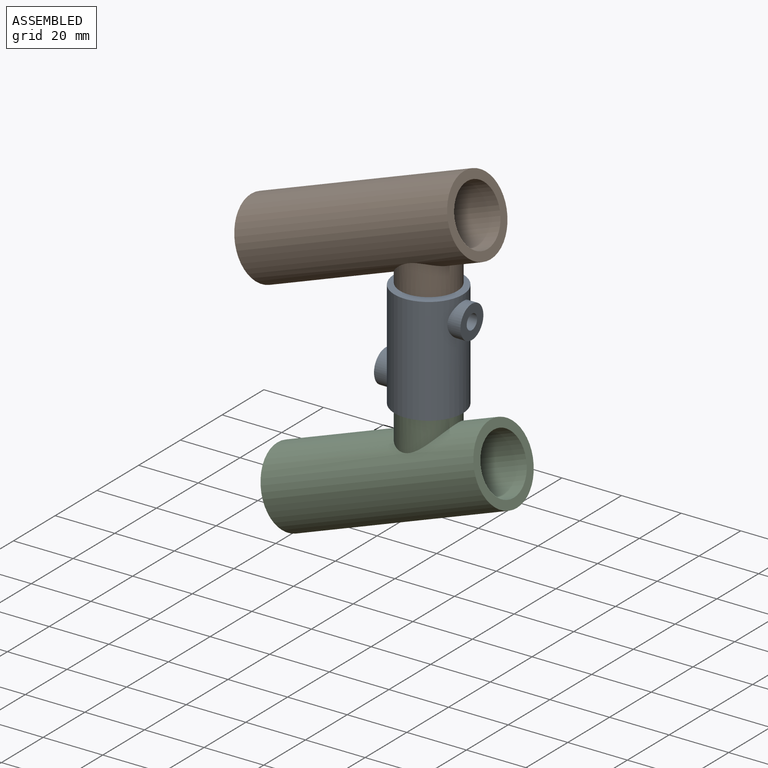
[diagram: assembled view]
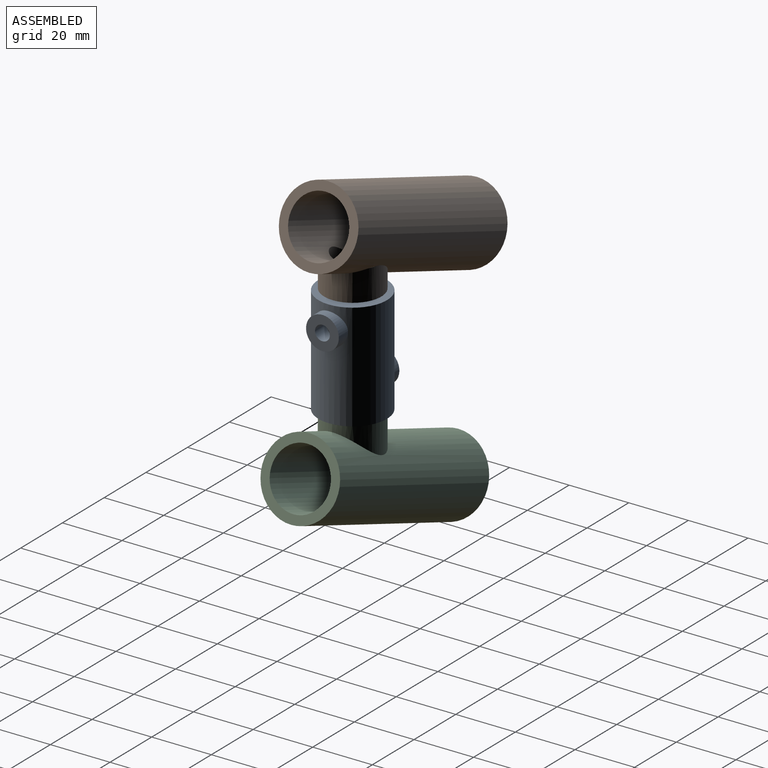
[diagram: assembled view, second angle]
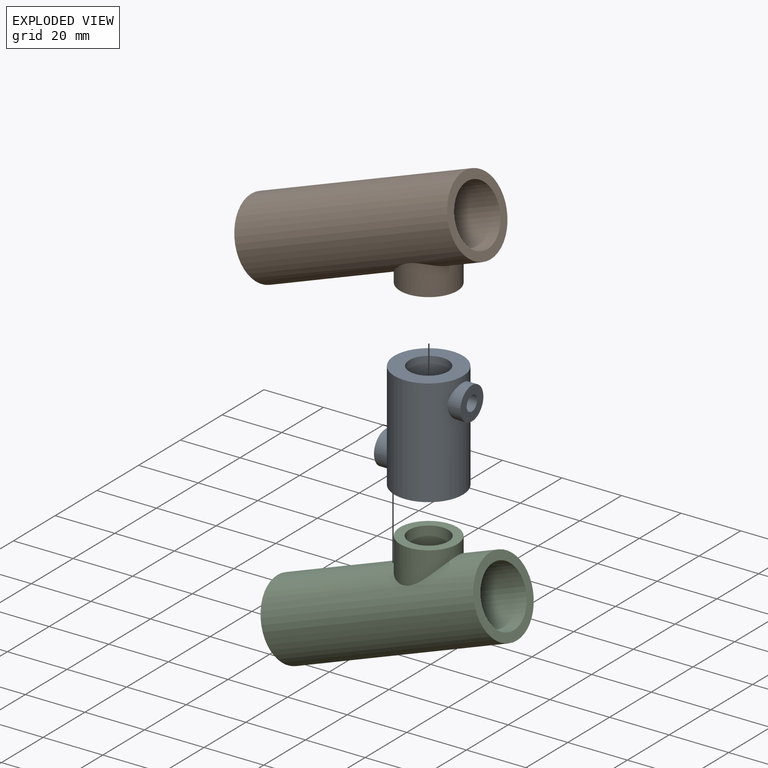
[diagram: exploded view]
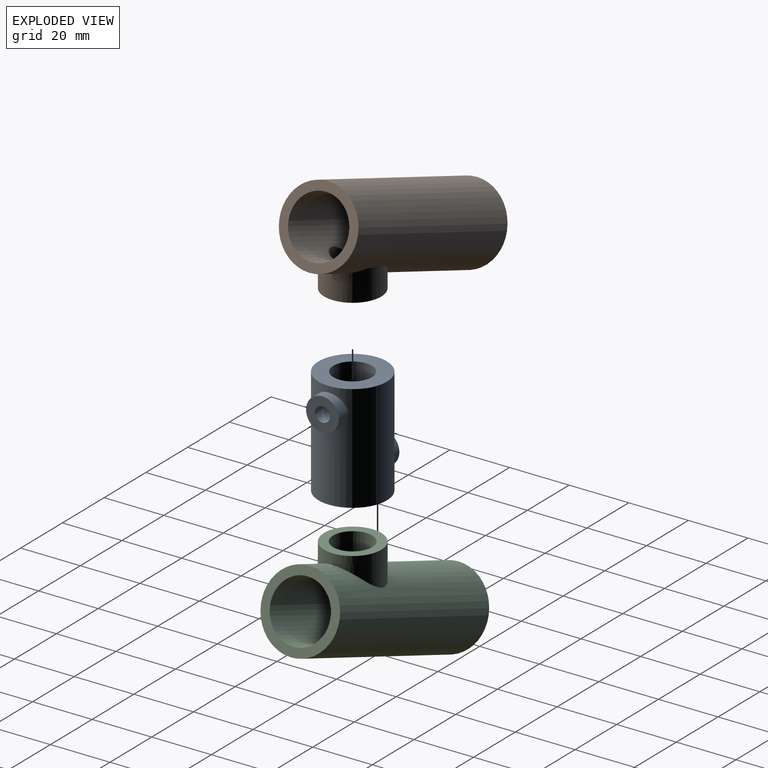
[diagram: exploded view, second angle]
ASSEMBLY  parts=3 mates=2
PART A: 18 faces, bbox 29x23x36 mm
  f0: cylinder r=11.5mm len=36mm, axis (0,0,1), area 2405.3mm2, adj f10,f11,f12,f16
  f1: cylinder r=9.5mm len=32mm, axis (0,0,1), area 1870.4mm2, adj f3,f4,f7,f13
  f2: cylinder r=8.5mm len=32mm, axis (0,0,1), area 1669.3mm2, adj f3,f4,f6,f14
  f3: plane 19x19mm, normal (0,0,-1), area 56.5mm2, adj f1,f2
  f4: plane 19x19mm, normal (0,0,1), area 56.5mm2, adj f1,f2
  f5: plane 5x5mm, normal (1,0,0), area 19.6mm2, adj f6
  f6: cylinder r=2.5mm len=5mm, axis (1,0,0), area 12.8mm2, adj f2,f5
  f7: cylinder r=2.5mm len=5.34mm, axis (1,0,0), area 81.2mm2, adj f1,f8
  f8: plane 11x11mm, normal (1,0,0), area 75.4mm2, adj f7,f12
  f9: cylinder r=6.5mm len=36mm, axis (0,0,1), area 1470.3mm2, adj f10,f11
  f10: plane 23x23mm, normal (0,0,1), area 282.7mm2, adj f0,f9
  f11: plane 23x23mm, normal (0,0,-1), area 282.7mm2, adj f0,f9
  f12: cylinder r=5.5mm len=11mm, axis (1,0,0), area 127.5mm2, adj f0,f8
  f13: cylinder r=2.5mm len=5.34mm, axis (-1,0,0), area 81.2mm2, adj f1,f17
  f14: cylinder r=2.5mm len=5mm, axis (-1,0,0), area 12.8mm2, adj f2,f15
  f15: plane 5x5mm, normal (-1,0,0), area 19.6mm2, adj f14
  f16: cylinder r=5.5mm len=11mm, axis (-1,0,0), area 127.5mm2, adj f0,f17
  f17: plane 11x11mm, normal (-1,0,0), area 75.4mm2, adj f13,f16
PART B: 10 faces, bbox 34x26.1x76.1 mm
  f0: plane 2.25x0.89mm, normal (-0.94,0,0.34), area 0.1mm2, adj f2,f6
  f1: cylinder r=6.6mm len=16.28mm, axis (0.94,0,-0.34), area 392.7mm2, adj f4,f5
  f2: cylinder r=9.6mm len=21.46mm, axis (0.94,0,-0.34), area 430.6mm2, adj f0,f3,f4,f6
  f3: plane 2.25x0.89mm, normal (-0.94,0,0.34), area 0.1mm2, adj f2,f6
  f4: plane 19.2x18.04mm, normal (0.94,0,-0.34), area 152.7mm2, adj f1,f2
  f5: cylinder r=10mm len=63mm, axis (0,0,-1), area 3803.2mm2, adj f1,f7,f9
  f6: cylinder r=13mm len=76mm, axis (0,0,-1), area 5872.8mm2, adj f0,f2,f3,f7,f8
  f7: plane 26x26mm, normal (0,0,1), area 216.8mm2, adj f5,f6
  f8: plane 26x26mm, normal (0,0,-1), area 530.9mm2, adj f6
  f9: sphere r=10mm, area 628.3mm2, adj f5
PART C: 8 faces, bbox 35.9x26x76 mm
  f0: cylinder r=13mm len=76mm, axis (0,0,-1), area 5872.4mm2, adj f1,f4,f6
  f1: plane 26x26mm, normal (0,0,-1), area 530.9mm2, adj f0
  f2: sphere r=10mm, area 628.3mm2, adj f3
  f3: cylinder r=10mm len=63mm, axis (0,0,-1), area 3803.1mm2, adj f2,f4,f5
  f4: plane 26x26mm, normal (0,0,1), area 216.8mm2, adj f0,f3
  f5: cylinder r=6.6mm len=17.03mm, axis (-0.94,0,0.34), area 475.6mm2, adj f3,f7
  f6: cylinder r=9.6mm len=22.17mm, axis (0.94,0,-0.34), area 551.5mm2, adj f0,f7
  f7: plane 19.2x18.04mm, normal (-0.94,0,0.34), area 152.7mm2, adj f5,f6
PLACE A t=(75.8,16.49,-4.19)mm
PLACE B rot(axis=(0,1,0),70deg) t=(62.51,16.49,28.39)mm
PLACE C rot(axis=(0,1,0),70deg) t=(71.31,16.49,-44.66)mm
MATE fastened C.f6 <-> A.f0  axis (0,0,1) through (75.8,16.49,-22.19)mm
MATE slider A.f0 <-> B.f1  axis (0,0,1) through (75.8,16.49,13.81)mm
